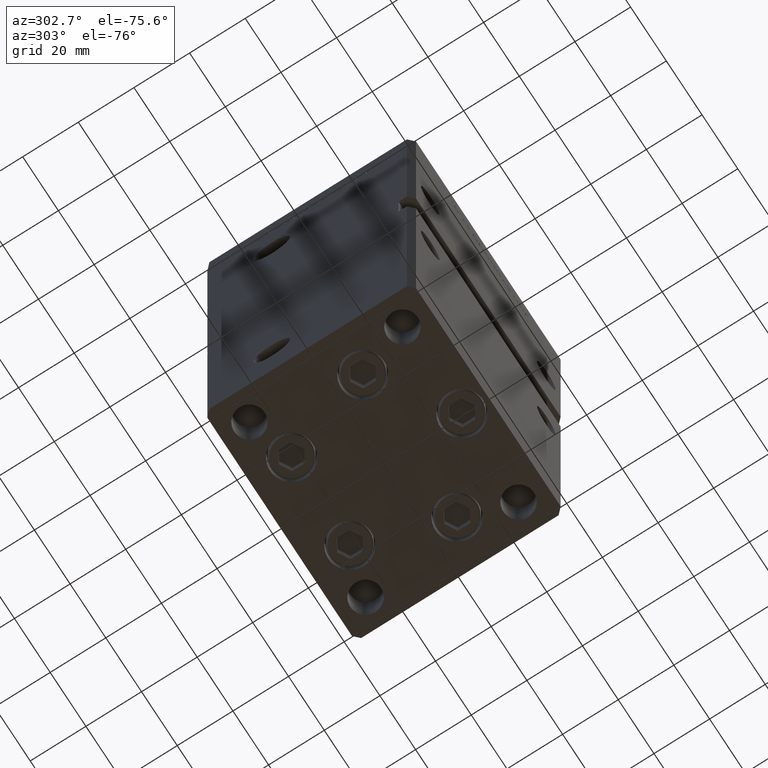
[diagram: clean part render]
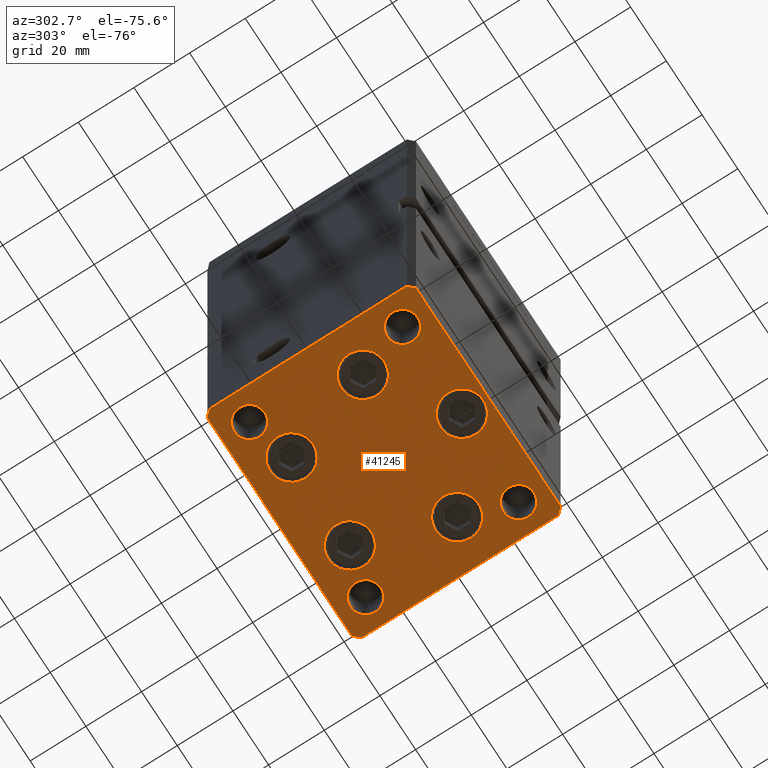
[diagram: same view with one face highlighted and labeled with its STEP entity id]
A machine part, auxiliary view. The second image highlights one B-rep face of the part: STEP entity #41245.
In plain terms, the highlighted planar face has unit normal (0, 0, -1).
Its self-contained STEP definition (entity closure, byte-faithful):
#36 = CIRCLE ( 'NONE', #6005, 7.750000000000003553 ) ;
#432 = CARTESIAN_POINT ( 'NONE',  ( 16.32291334290542295, 22.75000000000000000, 0.000000000000000000 ) ) ;
#612 = ORIENTED_EDGE ( 'NONE', *, *, #34252, .T. ) ;
#702 = DIRECTION ( 'NONE',  ( 0.000000000000000000, -0.000000000000000000, -1.000000000000000000 ) ) ;
#854 = ORIENTED_EDGE ( 'NONE', *, *, #5112, .T. ) ;
#918 = CARTESIAN_POINT ( 'NONE',  ( 7.750000000000003553, -28.00000000000000000, 0.000000000000000000 ) ) ;
#996 = ORIENTED_EDGE ( 'NONE', *, *, #42155, .T. ) ;
#1005 = CARTESIAN_POINT ( 'NONE',  ( -42.50000000000000000, -35.50000000000000711, 0.000000000000000000 ) ) ;
#1386 = CARTESIAN_POINT ( 'NONE',  ( -40.49999999999999289, -37.50000000000002132, 0.000000000000000000 ) ) ;
#1580 = ORIENTED_EDGE ( 'NONE', *, *, #44265, .T. ) ;
#1615 = CARTESIAN_POINT ( 'NONE',  ( 42.50000000000000711, -35.50000000000000000, 0.000000000000000000 ) ) ;
#1820 = DIRECTION ( 'NONE',  ( 0.000000000000000000, -0.000000000000000000, -1.000000000000000000 ) ) ;
#1846 = FACE_BOUND ( 'NONE', #4946, .T. ) ;
#1875 = VERTEX_POINT ( 'NONE', #8035 ) ;
#1914 = VERTEX_POINT ( 'NONE', #30585 ) ;
#2024 = EDGE_CURVE ( 'NONE', #11965, #40484, #50298, .T. ) ;
#2308 = CARTESIAN_POINT ( 'NONE',  ( -27.00000000000000355, -27.49999999999999645, 0.000000000000000000 ) ) ;
#2385 = FACE_BOUND ( 'NONE', #27641, .T. ) ;
#2409 = CARTESIAN_POINT ( 'NONE',  ( -40.50000000000000711, 37.49999999999997868, 0.000000000000000000 ) ) ;
#2521 = EDGE_CURVE ( 'NONE', #4494, #48173, #39038, .T. ) ;
#2621 = CARTESIAN_POINT ( 'NONE',  ( -26.39865316429776954, -9.333333333333337478, 0.000000000000000000 ) ) ;
#3144 = CARTESIAN_POINT ( 'NONE',  ( 27.00000000000000355, -27.49999999999999645, 0.000000000000000000 ) ) ;
#3361 = ORIENTED_EDGE ( 'NONE', *, *, #41243, .T. ) ;
#3440 = CARTESIAN_POINT ( 'NONE',  ( -32.50000000000000000, 27.50000000000000355, 0.000000000000000000 ) ) ;
#3666 = DIRECTION ( 'NONE',  ( 0.000000000000000000, -0.000000000000000000, -1.000000000000000000 ) ) ;
#4010 = CIRCLE ( 'NONE', #45208, 7.750000000000003553 ) ;
#4239 = EDGE_LOOP ( 'NONE', ( #42698, #612 ) ) ;
#4494 = VERTEX_POINT ( 'NONE', #9451 ) ;
#4588 = CARTESIAN_POINT ( 'NONE',  ( -42.50000000000000711, 35.49999999999997158, 0.000000000000000000 ) ) ;
#4648 = EDGE_CURVE ( 'NONE', #27923, #6560, #15055, .T. ) ;
#4723 = DIRECTION ( 'NONE',  ( 1.000000000000000000, 0.000000000000000000, 0.000000000000000000 ) ) ;
#4734 = CARTESIAN_POINT ( 'NONE',  ( 34.14865316429776954, -9.333333333333328596, 0.000000000000000000 ) ) ;
#4941 = LINE ( 'NONE', #21364, #7359 ) ;
#4946 = EDGE_LOOP ( 'NONE', ( #48792, #52940 ) ) ;
#4964 = VERTEX_POINT ( 'NONE', #2308 ) ;
#5112 = EDGE_CURVE ( 'NONE', #21909, #52308, #10795, .T. ) ;
#5743 = ORIENTED_EDGE ( 'NONE', *, *, #24608, .F. ) ;
#5841 = CARTESIAN_POINT ( 'NONE',  ( 32.50000000000000000, -27.49999999999999645, 0.000000000000000000 ) ) ;
#5848 = DIRECTION ( 'NONE',  ( 1.000000000000000000, 0.000000000000000000, 0.000000000000000000 ) ) ;
#6005 = AXIS2_PLACEMENT_3D ( 'NONE', #50381, #30489, #27266 ) ;
#6560 = VERTEX_POINT ( 'NONE', #11323 ) ;
#7359 = VECTOR ( 'NONE', #32392, 1000.000000000000000 ) ;
#7621 = CIRCLE ( 'NONE', #26568, 7.750000000000000000 ) ;
#8035 = CARTESIAN_POINT ( 'NONE',  ( -40.50000000000000711, 37.49999999999997868, 0.000000000000000000 ) ) ;
#8187 = DIRECTION ( 'NONE',  ( 1.000000000000000000, 0.000000000000000000, 0.000000000000000000 ) ) ;
#8258 = CARTESIAN_POINT ( 'NONE',  ( -42.50000000000000711, 35.49999999999997158, 0.000000000000000000 ) ) ;
#8364 = EDGE_CURVE ( 'NONE', #28096, #1914, #4010, .T. ) ;
#8478 = DIRECTION ( 'NONE',  ( 1.000000000000000000, 0.000000000000000000, 0.000000000000000000 ) ) ;
#8795 = AXIS2_PLACEMENT_3D ( 'NONE', #2621, #3666, #52072 ) ;
#8864 = DIRECTION ( 'NONE',  ( -1.000000000000000000, -3.426614273534436165E-16, 0.000000000000000000 ) ) ;
#8940 = CARTESIAN_POINT ( 'NONE',  ( 42.50000000000000711, -35.50000000000000000, 0.000000000000000000 ) ) ;
#9101 = ORIENTED_EDGE ( 'NONE', *, *, #38453, .T. ) ;
#9263 = AXIS2_PLACEMENT_3D ( 'NONE', #3440, #12310, #16359 ) ;
#9451 = CARTESIAN_POINT ( 'NONE',  ( -18.64865316429776954, -9.333333333333335702, 0.000000000000000000 ) ) ;
#9492 = EDGE_CURVE ( 'NONE', #4964, #47858, #34966, .T. ) ;
#9981 = CARTESIAN_POINT ( 'NONE',  ( -34.14865316429776954, -9.333333333333337478, 0.000000000000000000 ) ) ;
#10120 = VERTEX_POINT ( 'NONE', #32191 ) ;
#10191 = DIRECTION ( 'NONE',  ( 0.000000000000000000, -0.000000000000000000, -1.000000000000000000 ) ) ;
#10272 = EDGE_LOOP ( 'NONE', ( #15434, #13566 ) ) ;
#10584 = DIRECTION ( 'NONE',  ( 1.000000000000000000, 0.000000000000000000, 0.000000000000000000 ) ) ;
#10708 = AXIS2_PLACEMENT_3D ( 'NONE', #5841, #1820, #8478 ) ;
#10747 = DIRECTION ( 'NONE',  ( -0.7071067811865463515, -0.7071067811865487940, 0.000000000000000000 ) ) ;
#10795 = CIRCLE ( 'NONE', #40829, 7.750000000000000000 ) ;
#10809 = EDGE_LOOP ( 'NONE', ( #18612, #49208 ) ) ;
#11104 = DIRECTION ( 'NONE',  ( -0.000000000000000000, 0.000000000000000000, 1.000000000000000000 ) ) ;
#11323 = CARTESIAN_POINT ( 'NONE',  ( 18.64865316429776954, -9.333333333333330373, 0.000000000000000000 ) ) ;
#11851 = AXIS2_PLACEMENT_3D ( 'NONE', #45766, #25601, #33918 ) ;
#11965 = VERTEX_POINT ( 'NONE', #45418 ) ;
#12078 = DIRECTION ( 'NONE',  ( -0.000000000000000000, 0.000000000000000000, 1.000000000000000000 ) ) ;
#12158 = CARTESIAN_POINT ( 'NONE',  ( 27.00000000000000355, 27.49999999999999645, 0.000000000000000000 ) ) ;
#12310 = DIRECTION ( 'NONE',  ( -0.000000000000000000, 0.000000000000000000, 1.000000000000000000 ) ) ;
#12915 = CARTESIAN_POINT ( 'NONE',  ( -27.00000000000000355, 27.50000000000000355, 0.000000000000000000 ) ) ;
#13022 = DIRECTION ( 'NONE',  ( 0.000000000000000000, -0.000000000000000000, -1.000000000000000000 ) ) ;
#13566 = ORIENTED_EDGE ( 'NONE', *, *, #22071, .F. ) ;
#14013 = VERTEX_POINT ( 'NONE', #23642 ) ;
#14753 = CARTESIAN_POINT ( 'NONE',  ( -16.32291334290543006, 22.74999999999999645, 0.000000000000000000 ) ) ;
#14971 = EDGE_CURVE ( 'NONE', #6560, #27923, #7621, .T. ) ;
#15055 = CIRCLE ( 'NONE', #24531, 7.750000000000000000 ) ;
#15314 = DIRECTION ( 'NONE',  ( 0.7071067811865474617, 0.7071067811865474617, 0.000000000000000000 ) ) ;
#15357 = ORIENTED_EDGE ( 'NONE', *, *, #14971, .T. ) ;
#15434 = ORIENTED_EDGE ( 'NONE', *, *, #40810, .F. ) ;
#16164 = AXIS2_PLACEMENT_3D ( 'NONE', #19718, #35584, #51969 ) ;
#16346 = CARTESIAN_POINT ( 'NONE',  ( -7.749999999999996447, -28.00000000000000000, 0.000000000000000000 ) ) ;
#16359 = DIRECTION ( 'NONE',  ( 1.000000000000000000, 0.000000000000000000, 0.000000000000000000 ) ) ;
#17287 = EDGE_CURVE ( 'NONE', #41679, #41544, #20627, .T. ) ;
#17638 = EDGE_CURVE ( 'NONE', #22154, #40449, #4941, .T. ) ;
#17724 = DIRECTION ( 'NONE',  ( 1.000000000000000000, 0.000000000000000000, 0.000000000000000000 ) ) ;
#17876 = CIRCLE ( 'NONE', #16164, 5.499999999999998224 ) ;
#17903 = DIRECTION ( 'NONE',  ( 1.000000000000000000, 0.000000000000000000, 0.000000000000000000 ) ) ;
#17997 = FACE_BOUND ( 'NONE', #45897, .T. ) ;
#18402 = CARTESIAN_POINT ( 'NONE',  ( -38.00000000000000000, -27.49999999999999645, 0.000000000000000000 ) ) ;
#18536 = FACE_BOUND ( 'NONE', #26411, .T. ) ;
#18612 = ORIENTED_EDGE ( 'NONE', *, *, #22630, .T. ) ;
#18805 = DIRECTION ( 'NONE',  ( -0.000000000000000000, 0.000000000000000000, 1.000000000000000000 ) ) ;
#19449 = DIRECTION ( 'NONE',  ( 1.000000000000000000, 0.000000000000000000, 0.000000000000000000 ) ) ;
#19718 = CARTESIAN_POINT ( 'NONE',  ( 32.50000000000000000, -27.49999999999999645, 0.000000000000000000 ) ) ;
#19834 = DIRECTION ( 'NONE',  ( 1.000000000000000000, 0.000000000000000000, 0.000000000000000000 ) ) ;
#20044 = DIRECTION ( 'NONE',  ( 0.000000000000000000, -0.000000000000000000, -1.000000000000000000 ) ) ;
#20155 = EDGE_CURVE ( 'NONE', #34182, #22154, #25481, .T. ) ;
#20397 = CARTESIAN_POINT ( 'NONE',  ( -38.00000000000000000, 27.50000000000000355, 0.000000000000000000 ) ) ;
#20442 = CARTESIAN_POINT ( 'NONE',  ( 40.49999999999991473, 37.50000000000000711, 0.000000000000000000 ) ) ;
#20627 = CIRCLE ( 'NONE', #25747, 7.750000000000000000 ) ;
#20892 = CARTESIAN_POINT ( 'NONE',  ( -42.50000000000000000, -35.50000000000000711, 0.000000000000000000 ) ) ;
#21247 = LINE ( 'NONE', #50251, #43991 ) ;
#21259 = VECTOR ( 'NONE', #30201, 1000.000000000000114 ) ;
#21359 = DIRECTION ( 'NONE',  ( 1.000000000000000000, 0.000000000000000000, 0.000000000000000000 ) ) ;
#21364 = CARTESIAN_POINT ( 'NONE',  ( -40.49999999999999289, -37.50000000000002132, 0.000000000000000000 ) ) ;
#21498 = VERTEX_POINT ( 'NONE', #8258 ) ;
#21909 = VERTEX_POINT ( 'NONE', #918 ) ;
#21969 = DIRECTION ( 'NONE',  ( 1.000000000000000000, 0.000000000000000000, 0.000000000000000000 ) ) ;
#22023 = FACE_OUTER_BOUND ( 'NONE', #26878, .T. ) ;
#22071 = EDGE_CURVE ( 'NONE', #39884, #14013, #43777, .T. ) ;
#22154 = VERTEX_POINT ( 'NONE', #1386 ) ;
#22272 = DIRECTION ( 'NONE',  ( 0.000000000000000000, -0.000000000000000000, -1.000000000000000000 ) ) ;
#22630 = EDGE_CURVE ( 'NONE', #1914, #28096, #36, .T. ) ;
#23538 = CARTESIAN_POINT ( 'NONE',  ( 24.07291334290542650, 22.75000000000000000, 0.000000000000000000 ) ) ;
#23642 = CARTESIAN_POINT ( 'NONE',  ( 38.00000000000000000, 27.49999999999999645, 0.000000000000000000 ) ) ;
#24066 = CARTESIAN_POINT ( 'NONE',  ( 3.429011037612589276E-15, -28.00000000000000000, 0.000000000000000000 ) ) ;
#24103 = ORIENTED_EDGE ( 'NONE', *, *, #44335, .T. ) ;
#24188 = EDGE_CURVE ( 'NONE', #52308, #21909, #45685, .T. ) ;
#24201 = VECTOR ( 'NONE', #46518, 1000.000000000000000 ) ;
#24440 = CARTESIAN_POINT ( 'NONE',  ( 40.50000000000000000, -37.50000000000000711, 0.000000000000000000 ) ) ;
#24531 = AXIS2_PLACEMENT_3D ( 'NONE', #32179, #24659, #19834 ) ;
#24549 = CARTESIAN_POINT ( 'NONE',  ( 32.50000000000000000, 27.49999999999999645, 0.000000000000000000 ) ) ;
#24608 = EDGE_CURVE ( 'NONE', #36584, #42139, #39336, .T. ) ;
#24659 = DIRECTION ( 'NONE',  ( 0.000000000000000000, -0.000000000000000000, -1.000000000000000000 ) ) ;
#24788 = AXIS2_PLACEMENT_3D ( 'NONE', #27427, #12078, #28480 ) ;
#25020 = VECTOR ( 'NONE', #10747, 1000.000000000000000 ) ;
#25481 = LINE ( 'NONE', #1005, #34294 ) ;
#25601 = DIRECTION ( 'NONE',  ( 0.000000000000000000, -0.000000000000000000, -1.000000000000000000 ) ) ;
#25747 = AXIS2_PLACEMENT_3D ( 'NONE', #14753, #31139, #35452 ) ;
#25923 = AXIS2_PLACEMENT_3D ( 'NONE', #27250, #11104, #10584 ) ;
#26055 = CARTESIAN_POINT ( 'NONE',  ( 0.000000000000000000, 0.000000000000000000, 0.000000000000000000 ) ) ;
#26325 = DIRECTION ( 'NONE',  ( 1.000000000000000000, 0.000000000000000000, 0.000000000000000000 ) ) ;
#26411 = EDGE_LOOP ( 'NONE', ( #29118, #5743 ) ) ;
#26568 = AXIS2_PLACEMENT_3D ( 'NONE', #31644, #22272, #5848 ) ;
#26604 = AXIS2_PLACEMENT_3D ( 'NONE', #24549, #36646, #19449 ) ;
#26799 = ORIENTED_EDGE ( 'NONE', *, *, #24188, .T. ) ;
#26878 = EDGE_LOOP ( 'NONE', ( #32459, #52745, #46292, #24103, #50804, #996, #9101, #1580 ) ) ;
#27250 = CARTESIAN_POINT ( 'NONE',  ( 32.50000000000000000, 27.49999999999999645, 0.000000000000000000 ) ) ;
#27266 = DIRECTION ( 'NONE',  ( 1.000000000000000000, 0.000000000000000000, 0.000000000000000000 ) ) ;
#27427 = CARTESIAN_POINT ( 'NONE',  ( -32.50000000000000000, 27.50000000000000355, 0.000000000000000000 ) ) ;
#27479 = EDGE_CURVE ( 'NONE', #10120, #31429, #50905, .T. ) ;
#27641 = EDGE_LOOP ( 'NONE', ( #26799, #854 ) ) ;
#27662 = AXIS2_PLACEMENT_3D ( 'NONE', #35199, #10191, #17724 ) ;
#27923 = VERTEX_POINT ( 'NONE', #4734 ) ;
#28096 = VERTEX_POINT ( 'NONE', #23538 ) ;
#28337 = EDGE_CURVE ( 'NONE', #40484, #11965, #17876, .T. ) ;
#28480 = DIRECTION ( 'NONE',  ( 1.000000000000000000, 0.000000000000000000, 0.000000000000000000 ) ) ;
#28594 = ORIENTED_EDGE ( 'NONE', *, *, #28337, .T. ) ;
#29118 = ORIENTED_EDGE ( 'NONE', *, *, #29763, .F. ) ;
#29151 = VECTOR ( 'NONE', #15314, 1000.000000000000114 ) ;
#29748 = DIRECTION ( 'NONE',  ( 0.000000000000000000, -0.000000000000000000, -1.000000000000000000 ) ) ;
#29763 = EDGE_CURVE ( 'NONE', #42139, #36584, #41928, .T. ) ;
#30201 = DIRECTION ( 'NONE',  ( -0.7071067811865474617, 0.7071067811865474617, 0.000000000000000000 ) ) ;
#30489 = DIRECTION ( 'NONE',  ( 0.000000000000000000, -0.000000000000000000, -1.000000000000000000 ) ) ;
#30585 = CARTESIAN_POINT ( 'NONE',  ( 8.572913342905422951, 22.75000000000000000, 0.000000000000000000 ) ) ;
#30612 = FACE_BOUND ( 'NONE', #10272, .T. ) ;
#30627 = ORIENTED_EDGE ( 'NONE', *, *, #9492, .T. ) ;
#30647 = LINE ( 'NONE', #24440, #29151 ) ;
#30793 = DIRECTION ( 'NONE',  ( 0.000000000000000000, -0.000000000000000000, -1.000000000000000000 ) ) ;
#31139 = DIRECTION ( 'NONE',  ( 0.000000000000000000, -0.000000000000000000, -1.000000000000000000 ) ) ;
#31429 = VERTEX_POINT ( 'NONE', #20442 ) ;
#31435 = LINE ( 'NONE', #2409, #25020 ) ;
#31644 = CARTESIAN_POINT ( 'NONE',  ( 26.39865316429776954, -9.333333333333330373, 0.000000000000000000 ) ) ;
#31760 = CIRCLE ( 'NONE', #39480, 7.750000000000000000 ) ;
#32179 = CARTESIAN_POINT ( 'NONE',  ( 26.39865316429776954, -9.333333333333330373, 0.000000000000000000 ) ) ;
#32191 = CARTESIAN_POINT ( 'NONE',  ( 42.49999999999992895, 35.50000000000000000, 0.000000000000000000 ) ) ;
#32285 = AXIS2_PLACEMENT_3D ( 'NONE', #33267, #29748, #21969 ) ;
#32392 = DIRECTION ( 'NONE',  ( 1.000000000000000000, 1.713307136767217096E-16, 0.000000000000000000 ) ) ;
#32459 = ORIENTED_EDGE ( 'NONE', *, *, #20155, .T. ) ;
#33044 = EDGE_CURVE ( 'NONE', #40449, #50220, #30647, .T. ) ;
#33267 = CARTESIAN_POINT ( 'NONE',  ( -26.39865316429776954, -9.333333333333337478, 0.000000000000000000 ) ) ;
#33918 = DIRECTION ( 'NONE',  ( 1.000000000000000000, 0.000000000000000000, 0.000000000000000000 ) ) ;
#34130 = ORIENTED_EDGE ( 'NONE', *, *, #4648, .T. ) ;
#34182 = VERTEX_POINT ( 'NONE', #20892 ) ;
#34252 = EDGE_CURVE ( 'NONE', #41544, #41679, #31760, .T. ) ;
#34294 = VECTOR ( 'NONE', #37324, 1000.000000000000000 ) ;
#34388 = FACE_BOUND ( 'NONE', #10809, .T. ) ;
#34966 = CIRCLE ( 'NONE', #52109, 5.499999999999998224 ) ;
#35199 = CARTESIAN_POINT ( 'NONE',  ( -32.50000000000000000, -27.49999999999999645, 0.000000000000000000 ) ) ;
#35452 = DIRECTION ( 'NONE',  ( 1.000000000000000000, 0.000000000000000000, 0.000000000000000000 ) ) ;
#35584 = DIRECTION ( 'NONE',  ( 0.000000000000000000, -0.000000000000000000, -1.000000000000000000 ) ) ;
#36584 = VERTEX_POINT ( 'NONE', #20397 ) ;
#36646 = DIRECTION ( 'NONE',  ( -0.000000000000000000, 0.000000000000000000, 1.000000000000000000 ) ) ;
#37097 = VECTOR ( 'NONE', #40902, 1000.000000000000000 ) ;
#37324 = DIRECTION ( 'NONE',  ( 0.7071067811865463515, -0.7071067811865487940, 0.000000000000000000 ) ) ;
#37661 = EDGE_LOOP ( 'NONE', ( #30627, #3361 ) ) ;
#38448 = LINE ( 'NONE', #1615, #24201 ) ;
#38453 = EDGE_CURVE ( 'NONE', #1875, #21498, #31435, .T. ) ;
#38684 = FACE_BOUND ( 'NONE', #37661, .T. ) ;
#38819 = AXIS2_PLACEMENT_3D ( 'NONE', #26055, #18805, #26325 ) ;
#39038 = CIRCLE ( 'NONE', #32285, 7.750000000000000000 ) ;
#39336 = CIRCLE ( 'NONE', #9263, 5.499999999999998224 ) ;
#39480 = AXIS2_PLACEMENT_3D ( 'NONE', #42357, #30793, #17903 ) ;
#39706 = CIRCLE ( 'NONE', #8795, 7.750000000000000000 ) ;
#39884 = VERTEX_POINT ( 'NONE', #12158 ) ;
#40076 = ORIENTED_EDGE ( 'NONE', *, *, #2024, .T. ) ;
#40449 = VERTEX_POINT ( 'NONE', #52349 ) ;
#40484 = VERTEX_POINT ( 'NONE', #3144 ) ;
#40810 = EDGE_CURVE ( 'NONE', #14013, #39884, #42224, .T. ) ;
#40829 = AXIS2_PLACEMENT_3D ( 'NONE', #24066, #20044, #8187 ) ;
#40902 = DIRECTION ( 'NONE',  ( 9.773090005503140331E-17, -1.000000000000000000, 0.000000000000000000 ) ) ;
#41165 = LINE ( 'NONE', #4588, #37097 ) ;
#41243 = EDGE_CURVE ( 'NONE', #47858, #4964, #50823, .T. ) ;
#41245 = ADVANCED_FACE ( 'NONE', ( #46484, #34388, #51049, #2385, #1846, #30612, #17997, #18536, #22023, #38684 ), #47023, .T. ) ;
#41544 = VERTEX_POINT ( 'NONE', #41589 ) ;
#41589 = CARTESIAN_POINT ( 'NONE',  ( -8.572913342905431833, 22.74999999999999645, 0.000000000000000000 ) ) ;
#41679 = VERTEX_POINT ( 'NONE', #51784 ) ;
#41680 = EDGE_LOOP ( 'NONE', ( #15357, #34130 ) ) ;
#41928 = CIRCLE ( 'NONE', #24788, 5.499999999999998224 ) ;
#42139 = VERTEX_POINT ( 'NONE', #12915 ) ;
#42155 = EDGE_CURVE ( 'NONE', #31429, #1875, #21247, .T. ) ;
#42224 = CIRCLE ( 'NONE', #25923, 5.499999999999998224 ) ;
#42357 = CARTESIAN_POINT ( 'NONE',  ( -16.32291334290543006, 22.74999999999999645, 0.000000000000000000 ) ) ;
#42698 = ORIENTED_EDGE ( 'NONE', *, *, #17287, .T. ) ;
#43777 = CIRCLE ( 'NONE', #26604, 5.499999999999998224 ) ;
#43991 = VECTOR ( 'NONE', #8864, 1000.000000000000000 ) ;
#44265 = EDGE_CURVE ( 'NONE', #21498, #34182, #41165, .T. ) ;
#44335 = EDGE_CURVE ( 'NONE', #50220, #10120, #38448, .T. ) ;
#45208 = AXIS2_PLACEMENT_3D ( 'NONE', #432, #702, #4723 ) ;
#45418 = CARTESIAN_POINT ( 'NONE',  ( 38.00000000000000000, -27.49999999999999645, 0.000000000000000000 ) ) ;
#45685 = CIRCLE ( 'NONE', #11851, 7.750000000000000000 ) ;
#45766 = CARTESIAN_POINT ( 'NONE',  ( 3.429011037612589276E-15, -28.00000000000000000, 0.000000000000000000 ) ) ;
#45854 = EDGE_CURVE ( 'NONE', #48173, #4494, #39706, .T. ) ;
#45897 = EDGE_LOOP ( 'NONE', ( #40076, #28594 ) ) ;
#46292 = ORIENTED_EDGE ( 'NONE', *, *, #33044, .T. ) ;
#46484 = FACE_BOUND ( 'NONE', #4239, .T. ) ;
#46518 = DIRECTION ( 'NONE',  ( -1.172770800660376741E-15, 1.000000000000000000, 0.000000000000000000 ) ) ;
#47023 = PLANE ( 'NONE',  #38819 ) ;
#47858 = VERTEX_POINT ( 'NONE', #18402 ) ;
#48173 = VERTEX_POINT ( 'NONE', #9981 ) ;
#48792 = ORIENTED_EDGE ( 'NONE', *, *, #45854, .T. ) ;
#49208 = ORIENTED_EDGE ( 'NONE', *, *, #8364, .T. ) ;
#49320 = CARTESIAN_POINT ( 'NONE',  ( -32.50000000000000000, -27.49999999999999645, 0.000000000000000000 ) ) ;
#50220 = VERTEX_POINT ( 'NONE', #8940 ) ;
#50251 = CARTESIAN_POINT ( 'NONE',  ( 40.49999999999991473, 37.50000000000000711, 0.000000000000000000 ) ) ;
#50298 = CIRCLE ( 'NONE', #10708, 5.499999999999998224 ) ;
#50358 = CARTESIAN_POINT ( 'NONE',  ( 42.49999999999992895, 35.50000000000000000, 0.000000000000000000 ) ) ;
#50381 = CARTESIAN_POINT ( 'NONE',  ( 16.32291334290542295, 22.75000000000000000, 0.000000000000000000 ) ) ;
#50804 = ORIENTED_EDGE ( 'NONE', *, *, #27479, .T. ) ;
#50823 = CIRCLE ( 'NONE', #27662, 5.499999999999998224 ) ;
#50905 = LINE ( 'NONE', #50358, #21259 ) ;
#51049 = FACE_BOUND ( 'NONE', #41680, .T. ) ;
#51784 = CARTESIAN_POINT ( 'NONE',  ( -24.07291334290543006, 22.74999999999999645, 0.000000000000000000 ) ) ;
#51969 = DIRECTION ( 'NONE',  ( 1.000000000000000000, 0.000000000000000000, 0.000000000000000000 ) ) ;
#52072 = DIRECTION ( 'NONE',  ( 1.000000000000000000, 0.000000000000000000, 0.000000000000000000 ) ) ;
#52109 = AXIS2_PLACEMENT_3D ( 'NONE', #49320, #13022, #21359 ) ;
#52308 = VERTEX_POINT ( 'NONE', #16346 ) ;
#52349 = CARTESIAN_POINT ( 'NONE',  ( 40.50000000000000000, -37.50000000000000711, 0.000000000000000000 ) ) ;
#52745 = ORIENTED_EDGE ( 'NONE', *, *, #17638, .T. ) ;
#52940 = ORIENTED_EDGE ( 'NONE', *, *, #2521, .T. ) ;